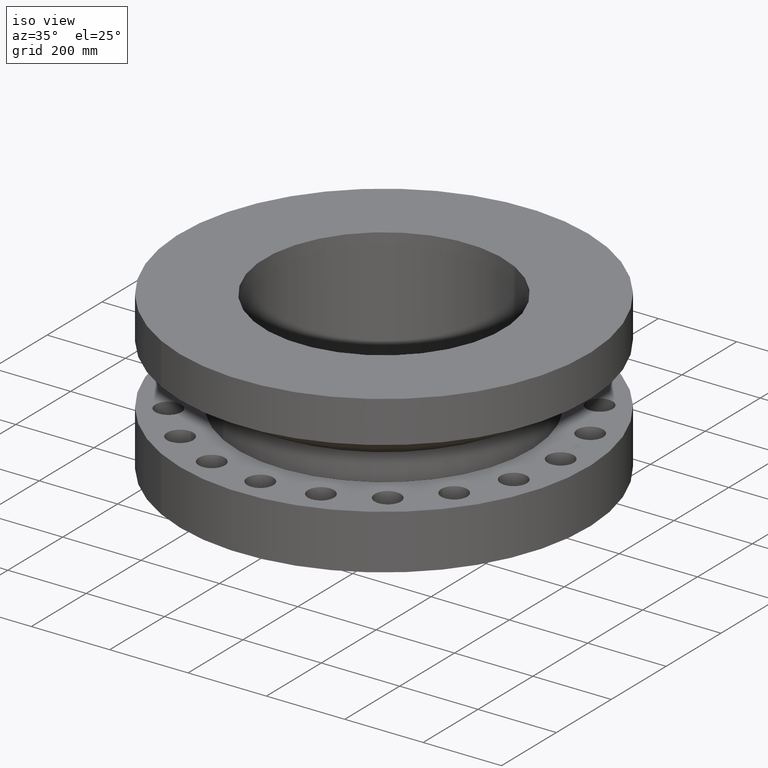
[diagram: clean part render]
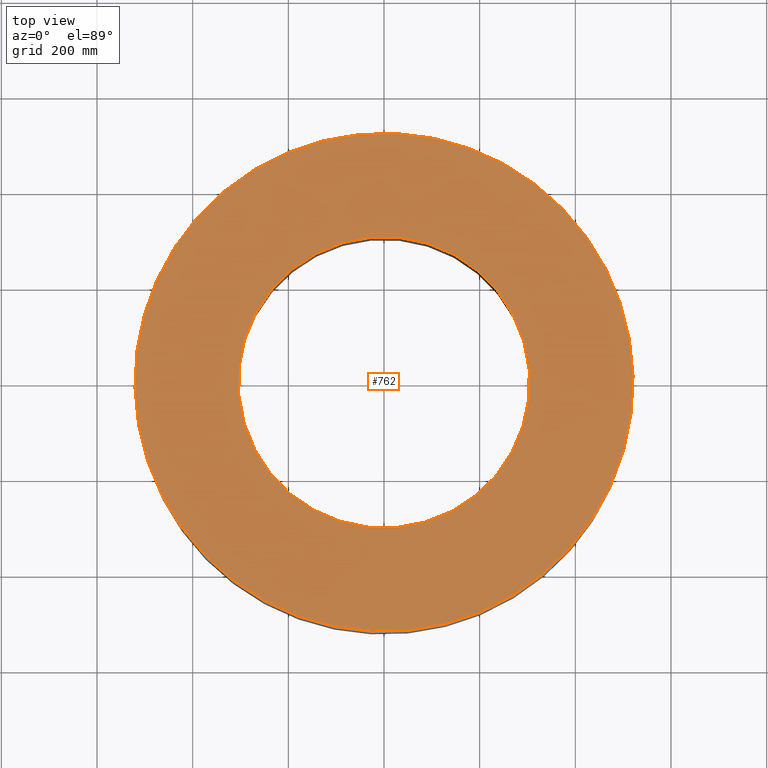
[diagram: tour spotlight — one face highlighted and labeled with its STEP entity id]
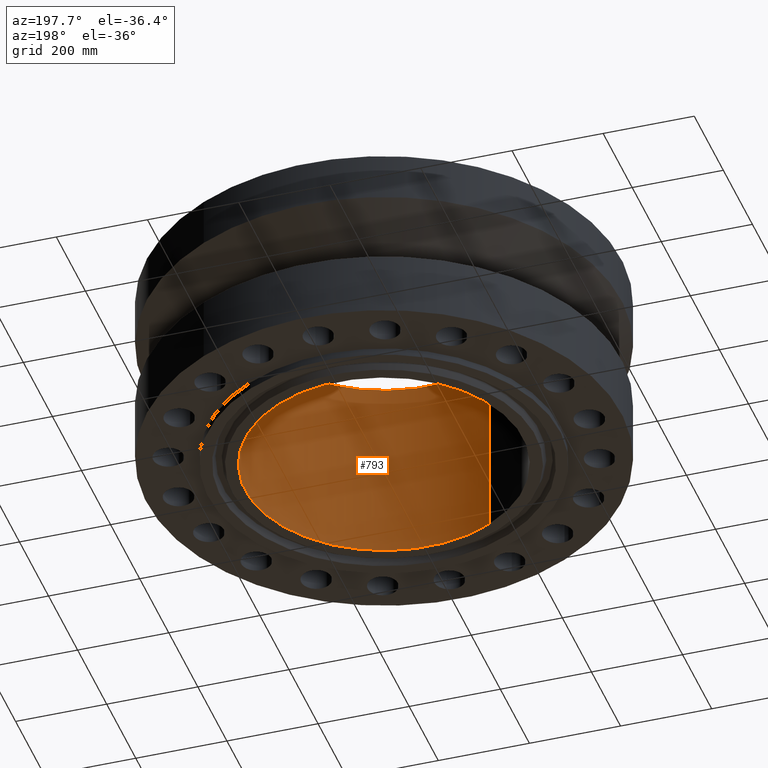
[diagram: tour spotlight — one face highlighted and labeled with its STEP entity id]
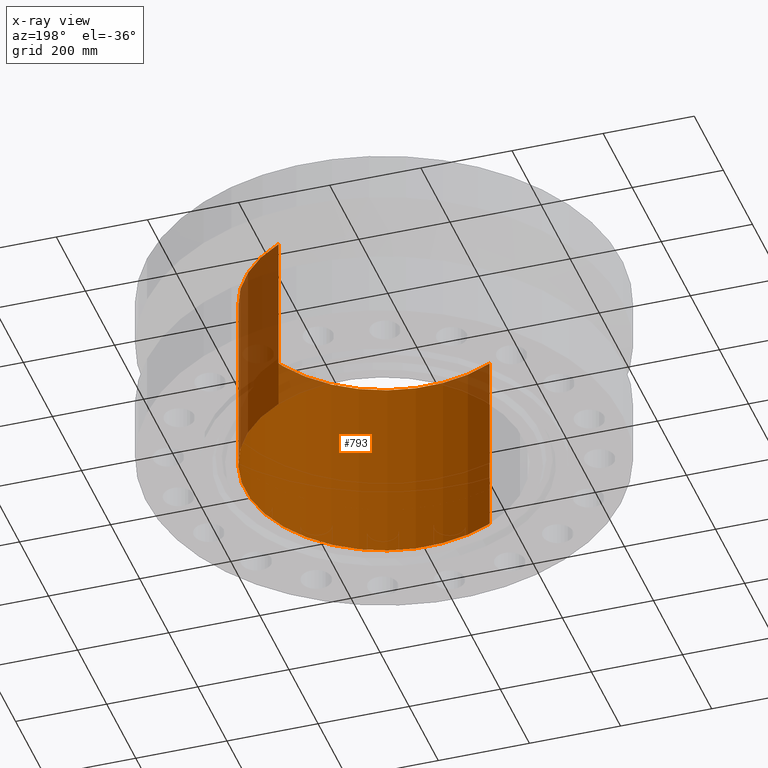
[diagram: x-ray of the same camera — body ghosted, this tour face saturated]
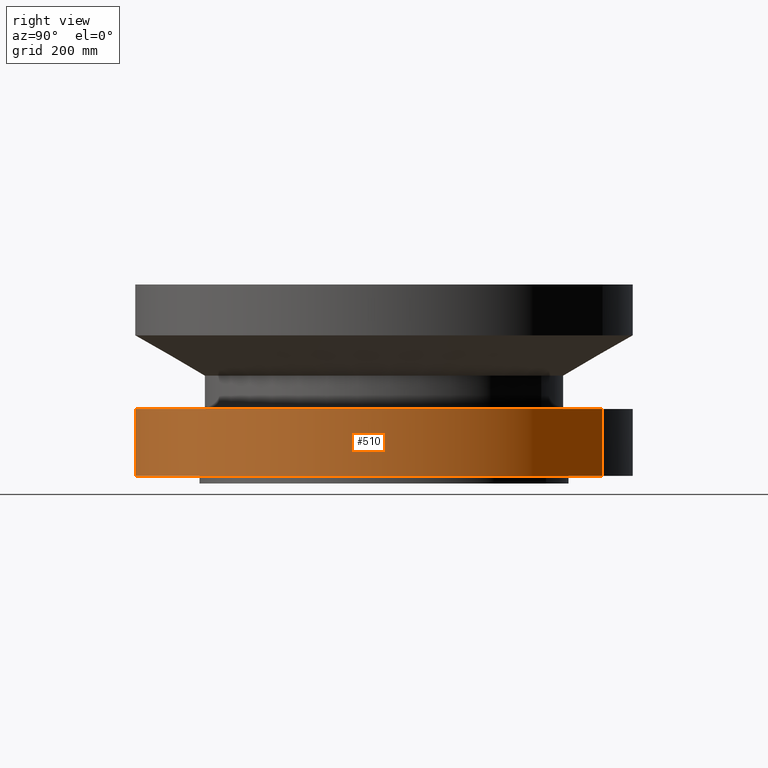
[diagram: tour spotlight — one face highlighted and labeled with its STEP entity id]
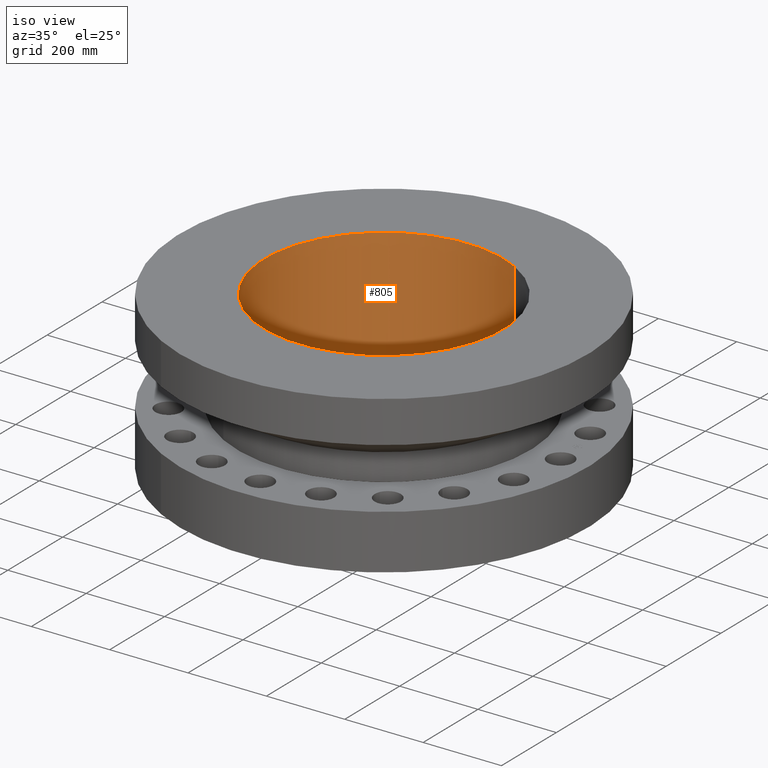
[diagram: tour spotlight — one face highlighted and labeled with its STEP entity id]
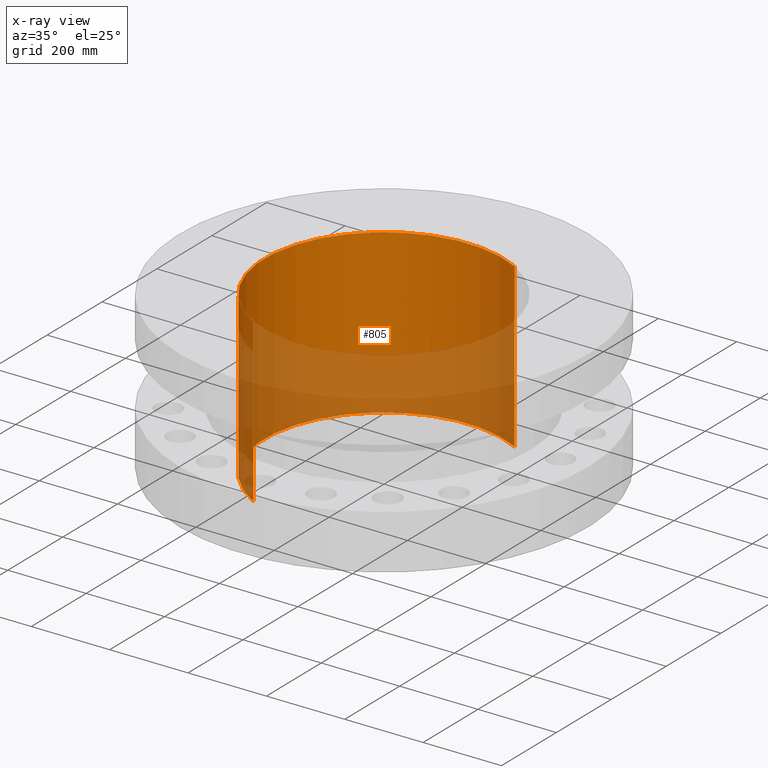
[diagram: x-ray of the same camera — body ghosted, this tour face saturated]
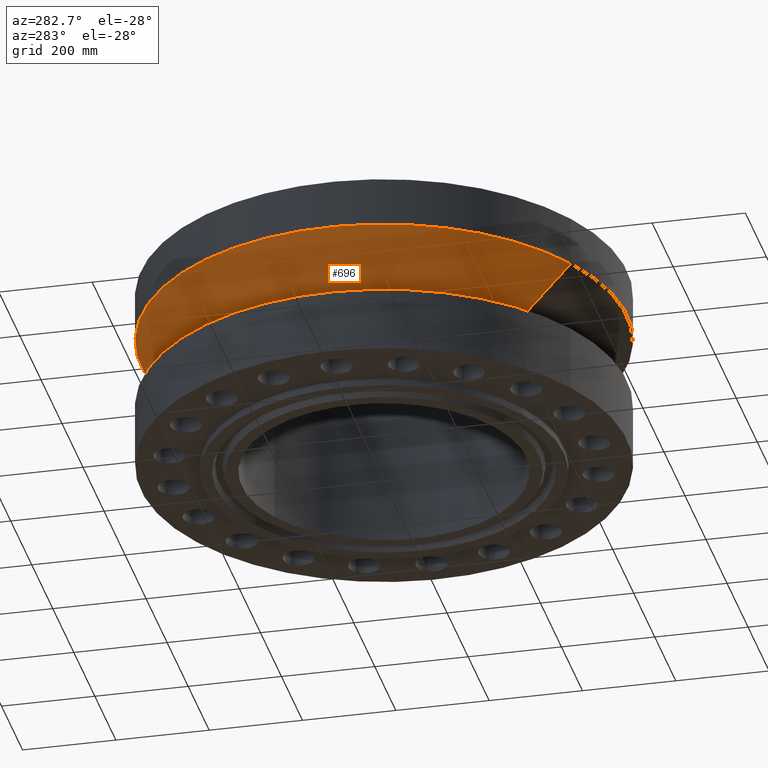
[diagram: tour spotlight — one face highlighted and labeled with its STEP entity id]
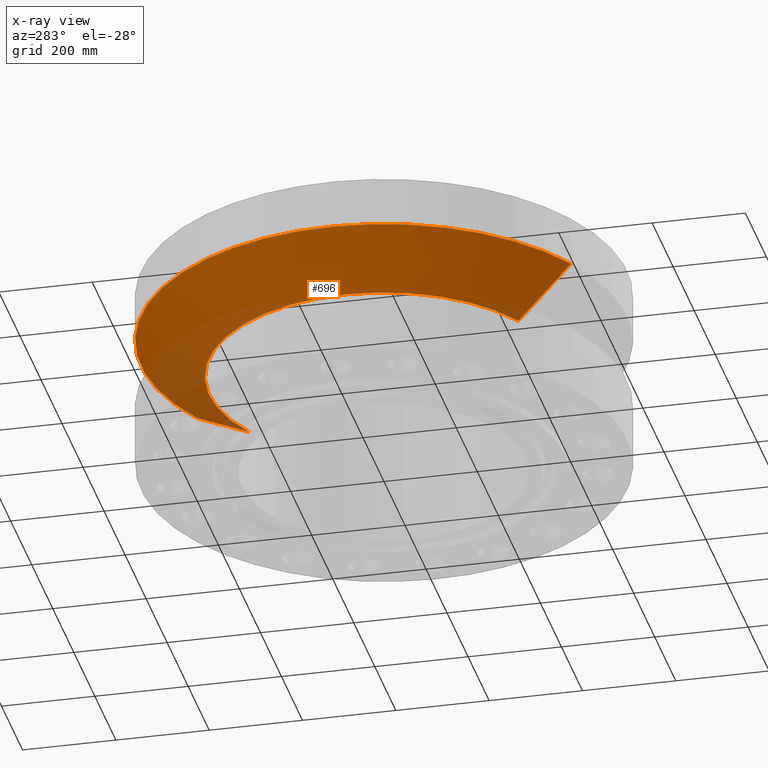
[diagram: x-ray of the same camera — body ghosted, this tour face saturated]
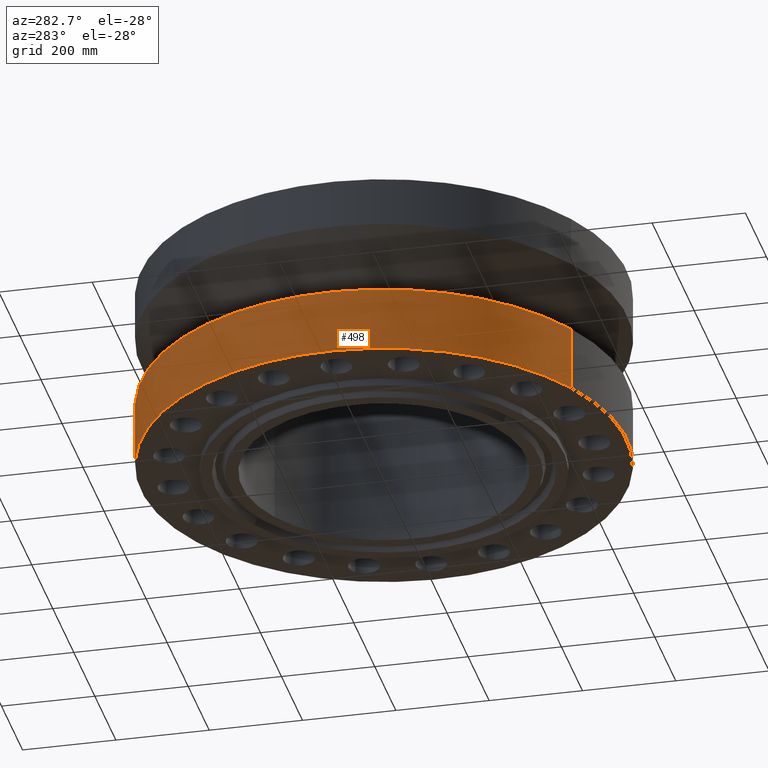
[diagram: tour spotlight — one face highlighted and labeled with its STEP entity id]
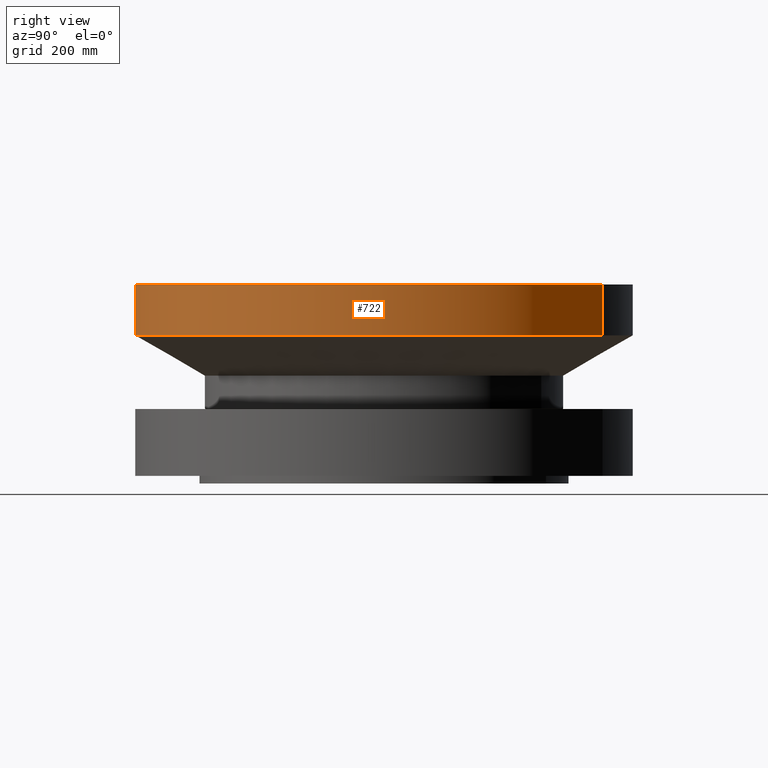
[diagram: tour spotlight — one face highlighted and labeled with its STEP entity id]
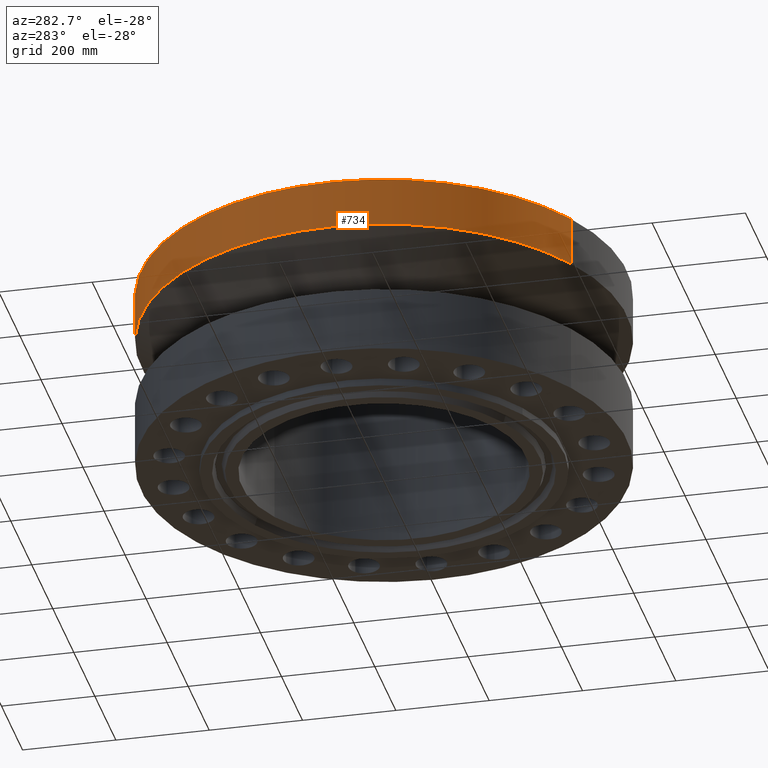
[diagram: tour spotlight — one face highlighted and labeled with its STEP entity id]
A machine part: a face-by-face anatomy tour. The part has 455 B-rep faces; the first image is the clean iso view, then the 8 largest visible faces are spotlighted one at a time (largest first), each with its STEP entity span.

Face 1 — top view, entity #762. In plain terms, the highlighted planar face has unit normal (0, 0, -1).
Definition (entity closure, byte-faithful):
#706=AXIS2_PLACEMENT_3D('Circle Axis2P3D',#704,#705,$) ;
#725=AXIS2_PLACEMENT_3D('Circle Axis2P3D',#723,#724,$) ;
#738=AXIS2_PLACEMENT_3D('Plane Axis2P3D',#735,#736,#737) ;
#746=AXIS2_PLACEMENT_3D('Circle Axis2P3D',#744,#745,$) ;
#755=AXIS2_PLACEMENT_3D('Circle Axis2P3D',#753,#754,$) ;
#701=CARTESIAN_POINT('Vertex',(9.82822354143,17.9904425188,15.7500000001)) ;
#704=CARTESIAN_POINT('Axis2P3D Location',(0.,0.,15.7500000001)) ;
#708=CARTESIAN_POINT('Vertex',(-9.82822354143,-17.9904425188,15.7500000001)) ;
#723=CARTESIAN_POINT('Axis2P3D Location',(0.,0.,15.7500000001)) ;
#735=CARTESIAN_POINT('Axis2P3D Location',(0.,20.5000000001,15.7500000001)) ;
#744=CARTESIAN_POINT('Axis2P3D Location',(0.,0.,15.7500000001)) ;
#748=CARTESIAN_POINT('Vertex',(-5.75310646327,-10.5309907427,15.7500000001)) ;
#750=CARTESIAN_POINT('Vertex',(5.75310646327,10.5309907427,15.7500000001)) ;
#753=CARTESIAN_POINT('Axis2P3D Location',(0.,0.,15.7500000001)) ;
#705=DIRECTION('Axis2P3D Direction',(0.,0.,-0.0393700787402)) ;
#724=DIRECTION('Axis2P3D Direction',(0.,0.,-0.0393700787402)) ;
#736=DIRECTION('Axis2P3D Direction',(0.,0.,-0.0393700787402)) ;
#737=DIRECTION('Axis2P3D XDirection',(0.0393700787402,0.,0.)) ;
#745=DIRECTION('Axis2P3D Direction',(0.,0.,-0.0393700787402)) ;
#754=DIRECTION('Axis2P3D Direction',(0.,0.,-0.0393700787402)) ;
#741=ORIENTED_EDGE('',*,*,#710,.F.) ;
#742=ORIENTED_EDGE('',*,*,#727,.F.) ;
#759=ORIENTED_EDGE('',*,*,#752,.T.) ;
#760=ORIENTED_EDGE('',*,*,#757,.T.) ;
#761=FACE_BOUND('',#758,.T.) ;
#762=ADVANCED_FACE('PartBody',(#743,#761),#739,.F.) ;
#707=CIRCLE('generated circle',#706,20.5000000001) ;
#726=CIRCLE('generated circle',#725,20.5000000001) ;
#747=CIRCLE('generated circle',#746,12.) ;
#756=CIRCLE('generated circle',#755,12.) ;
#710=EDGE_CURVE('',#702,#709,#707,.T.) ;
#727=EDGE_CURVE('',#709,#702,#726,.T.) ;
#752=EDGE_CURVE('',#749,#751,#747,.T.) ;
#757=EDGE_CURVE('',#751,#749,#756,.T.) ;
#740=EDGE_LOOP('',(#741,#742)) ;
#758=EDGE_LOOP('',(#759,#760)) ;
#743=FACE_OUTER_BOUND('',#740,.T.) ;
#739=PLANE('',#738) ;
#702=VERTEX_POINT('',#701) ;
#709=VERTEX_POINT('',#708) ;
#749=VERTEX_POINT('',#748) ;
#751=VERTEX_POINT('',#750) ;

Face 2 — auxiliary view, entity #793. An x-ray twin of the same camera follows (body ghosted, this face saturated) — the face is partly hidden behind the body. In plain terms, the highlighted cylindrical surface (partial cylindrical patch) has radius 304.8 mm, axis along (0, 0, -1).
Definition (entity closure, byte-faithful):
#755=AXIS2_PLACEMENT_3D('Circle Axis2P3D',#753,#754,$) ;
#766=AXIS2_PLACEMENT_3D('Cylinder Axis2P3D',#763,#764,#765) ;
#777=AXIS2_PLACEMENT_3D('Circle Axis2P3D',#775,#776,$) ;
#748=CARTESIAN_POINT('Vertex',(-5.75310646327,-10.5309907427,15.7500000001)) ;
#750=CARTESIAN_POINT('Vertex',(5.75310646327,10.5309907427,15.7500000001)) ;
#753=CARTESIAN_POINT('Axis2P3D Location',(0.,0.,15.7500000001)) ;
#763=CARTESIAN_POINT('Axis2P3D Location',(0.,0.,7.56250000003)) ;
#768=CARTESIAN_POINT('Line Origine',(5.75310646327,10.5309907427,7.56250000003)) ;
#772=CARTESIAN_POINT('Vertex',(5.75310646327,10.5309907427,-0.625000000002)) ;
#775=CARTESIAN_POINT('Axis2P3D Location',(0.,0.,-0.625000000002)) ;
#779=CARTESIAN_POINT('Vertex',(-5.75310646327,-10.5309907427,-0.625000000002)) ;
#782=CARTESIAN_POINT('Line Origine',(-5.75310646327,-10.5309907427,7.56250000003)) ;
#754=DIRECTION('Axis2P3D Direction',(0.,0.,-0.0393700787402)) ;
#764=DIRECTION('Axis2P3D Direction',(0.,0.,-0.0393700787402)) ;
#765=DIRECTION('Axis2P3D XDirection',(-0.0188750212049,-0.0345504945626,0.)) ;
#769=DIRECTION('Vector Direction',(0.,0.,-0.0393700787402)) ;
#776=DIRECTION('Axis2P3D Direction',(0.,0.,-0.0393700787402)) ;
#783=DIRECTION('Vector Direction',(0.,0.,-0.0393700787402)) ;
#770=VECTOR('Line Direction',#769,0.0393700787402) ;
#784=VECTOR('Line Direction',#783,0.0393700787402) ;
#788=ORIENTED_EDGE('',*,*,#757,.F.) ;
#789=ORIENTED_EDGE('',*,*,#774,.T.) ;
#790=ORIENTED_EDGE('',*,*,#781,.T.) ;
#791=ORIENTED_EDGE('',*,*,#786,.F.) ;
#793=ADVANCED_FACE('PartBody',(#792),#767,.F.) ;
#756=CIRCLE('generated circle',#755,12.) ;
#778=CIRCLE('generated circle',#777,12.) ;
#767=CYLINDRICAL_SURFACE('generated cylinder',#766,12.) ;
#757=EDGE_CURVE('',#751,#749,#756,.T.) ;
#774=EDGE_CURVE('',#751,#773,#771,.T.) ;
#781=EDGE_CURVE('',#773,#780,#778,.T.) ;
#786=EDGE_CURVE('',#749,#780,#785,.T.) ;
#787=EDGE_LOOP('',(#788,#789,#790,#791)) ;
#792=FACE_OUTER_BOUND('',#787,.T.) ;
#771=LINE('Line',#768,#770) ;
#785=LINE('Line',#782,#784) ;
#749=VERTEX_POINT('',#748) ;
#751=VERTEX_POINT('',#750) ;
#773=VERTEX_POINT('',#772) ;
#780=VERTEX_POINT('',#779) ;

Face 3 — right view, entity #510. In plain terms, the highlighted cylindrical surface (partial cylindrical patch) has radius 520.7 mm, axis along (0, 0, -1).
Definition (entity closure, byte-faithful):
#91=AXIS2_PLACEMENT_3D('Circle Axis2P3D',#89,#90,$) ;
#471=AXIS2_PLACEMENT_3D('Cylinder Axis2P3D',#468,#469,#470) ;
#501=AXIS2_PLACEMENT_3D('Circle Axis2P3D',#499,#500,$) ;
#84=CARTESIAN_POINT('Vertex',(-9.82822354143,-17.9904425188,2.23792987641E-015)) ;
#86=CARTESIAN_POINT('Vertex',(9.82822354143,17.9904425188,2.23792987641E-015)) ;
#89=CARTESIAN_POINT('Axis2P3D Location',(0.,0.,0.)) ;
#468=CARTESIAN_POINT('Axis2P3D Location',(0.,0.,7.56250000003)) ;
#473=CARTESIAN_POINT('Line Origine',(-9.82822354143,-17.9904425188,13.659882024)) ;
#477=CARTESIAN_POINT('Vertex',(-9.82822354143,-17.9904425188,5.50000000002)) ;
#484=CARTESIAN_POINT('Vertex',(9.82822354143,17.9904425188,5.50000000002)) ;
#487=CARTESIAN_POINT('Line Origine',(9.82822354143,17.9904425188,13.659882024)) ;
#499=CARTESIAN_POINT('Axis2P3D Location',(0.,0.,5.50000000002)) ;
#90=DIRECTION('Axis2P3D Direction',(0.,0.,-0.0393700787402)) ;
#469=DIRECTION('Axis2P3D Direction',(0.,0.,-0.0393700787402)) ;
#470=DIRECTION('Axis2P3D XDirection',(-0.0188750212049,-0.0345504945626,0.)) ;
#474=DIRECTION('Vector Direction',(0.,0.,-0.0393700787402)) ;
#488=DIRECTION('Vector Direction',(0.,0.,-0.0393700787402)) ;
#500=DIRECTION('Axis2P3D Direction',(0.,0.,-0.0393700787402)) ;
#475=VECTOR('Line Direction',#474,0.0393700787402) ;
#489=VECTOR('Line Direction',#488,0.0393700787402) ;
#505=ORIENTED_EDGE('',*,*,#93,.F.) ;
#506=ORIENTED_EDGE('',*,*,#491,.T.) ;
#507=ORIENTED_EDGE('',*,*,#503,.T.) ;
#508=ORIENTED_EDGE('',*,*,#479,.F.) ;
#510=ADVANCED_FACE('PartBody',(#509),#472,.T.) ;
#92=CIRCLE('generated circle',#91,20.5000000001) ;
#502=CIRCLE('generated circle',#501,20.5000000001) ;
#472=CYLINDRICAL_SURFACE('generated cylinder',#471,20.5000000001) ;
#93=EDGE_CURVE('',#87,#85,#92,.T.) ;
#479=EDGE_CURVE('',#85,#478,#476,.F.) ;
#491=EDGE_CURVE('',#87,#485,#490,.F.) ;
#503=EDGE_CURVE('',#485,#478,#502,.T.) ;
#504=EDGE_LOOP('',(#505,#506,#507,#508)) ;
#509=FACE_OUTER_BOUND('',#504,.T.) ;
#476=LINE('Line',#473,#475) ;
#490=LINE('Line',#487,#489) ;
#85=VERTEX_POINT('',#84) ;
#87=VERTEX_POINT('',#86) ;
#478=VERTEX_POINT('',#477) ;
#485=VERTEX_POINT('',#484) ;

Face 4 — iso view, entity #805. An x-ray twin of the same camera follows (body ghosted, this face saturated) — the face is partly hidden behind the body. In plain terms, the highlighted cylindrical surface (partial cylindrical patch) has radius 304.8 mm, axis along (0, 0, -1).
Definition (entity closure, byte-faithful):
#746=AXIS2_PLACEMENT_3D('Circle Axis2P3D',#744,#745,$) ;
#766=AXIS2_PLACEMENT_3D('Cylinder Axis2P3D',#763,#764,#765) ;
#796=AXIS2_PLACEMENT_3D('Circle Axis2P3D',#794,#795,$) ;
#744=CARTESIAN_POINT('Axis2P3D Location',(0.,0.,15.7500000001)) ;
#748=CARTESIAN_POINT('Vertex',(-5.75310646327,-10.5309907427,15.7500000001)) ;
#750=CARTESIAN_POINT('Vertex',(5.75310646327,10.5309907427,15.7500000001)) ;
#763=CARTESIAN_POINT('Axis2P3D Location',(0.,0.,7.56250000003)) ;
#768=CARTESIAN_POINT('Line Origine',(5.75310646327,10.5309907427,7.56250000003)) ;
#772=CARTESIAN_POINT('Vertex',(5.75310646327,10.5309907427,-0.625000000002)) ;
#779=CARTESIAN_POINT('Vertex',(-5.75310646327,-10.5309907427,-0.625000000002)) ;
#782=CARTESIAN_POINT('Line Origine',(-5.75310646327,-10.5309907427,7.56250000003)) ;
#794=CARTESIAN_POINT('Axis2P3D Location',(0.,0.,-0.625000000002)) ;
#745=DIRECTION('Axis2P3D Direction',(0.,0.,-0.0393700787402)) ;
#764=DIRECTION('Axis2P3D Direction',(0.,0.,-0.0393700787402)) ;
#765=DIRECTION('Axis2P3D XDirection',(-0.0188750212049,-0.0345504945626,0.)) ;
#769=DIRECTION('Vector Direction',(0.,0.,-0.0393700787402)) ;
#783=DIRECTION('Vector Direction',(0.,0.,-0.0393700787402)) ;
#795=DIRECTION('Axis2P3D Direction',(0.,0.,-0.0393700787402)) ;
#770=VECTOR('Line Direction',#769,0.0393700787402) ;
#784=VECTOR('Line Direction',#783,0.0393700787402) ;
#800=ORIENTED_EDGE('',*,*,#752,.F.) ;
#801=ORIENTED_EDGE('',*,*,#786,.T.) ;
#802=ORIENTED_EDGE('',*,*,#798,.T.) ;
#803=ORIENTED_EDGE('',*,*,#774,.F.) ;
#805=ADVANCED_FACE('PartBody',(#804),#767,.F.) ;
#747=CIRCLE('generated circle',#746,12.) ;
#797=CIRCLE('generated circle',#796,12.) ;
#767=CYLINDRICAL_SURFACE('generated cylinder',#766,12.) ;
#752=EDGE_CURVE('',#749,#751,#747,.T.) ;
#774=EDGE_CURVE('',#751,#773,#771,.T.) ;
#786=EDGE_CURVE('',#749,#780,#785,.T.) ;
#798=EDGE_CURVE('',#780,#773,#797,.T.) ;
#799=EDGE_LOOP('',(#800,#801,#802,#803)) ;
#804=FACE_OUTER_BOUND('',#799,.T.) ;
#771=LINE('Line',#768,#770) ;
#785=LINE('Line',#782,#784) ;
#749=VERTEX_POINT('',#748) ;
#751=VERTEX_POINT('',#750) ;
#773=VERTEX_POINT('',#772) ;
#780=VERTEX_POINT('',#779) ;

Face 5 — auxiliary view, entity #696. An x-ray twin of the same camera follows (body ghosted, this face saturated) — the face is partly hidden behind the body. In plain terms, the highlighted conical surface has half-angle 60 deg.
Definition (entity closure, byte-faithful):
#644=AXIS2_PLACEMENT_3D('Circle Axis2P3D',#642,#643,$) ;
#657=AXIS2_PLACEMENT_3D('Cone Axis2P3D',#654,#655,#656) ;
#687=AXIS2_PLACEMENT_3D('Circle Axis2P3D',#685,#686,$) ;
#620=CARTESIAN_POINT('Vertex',(7.07152669444,12.9443427879,8.25000000003)) ;
#627=CARTESIAN_POINT('Vertex',(-7.07152669444,-12.9443427879,8.25000000003)) ;
#642=CARTESIAN_POINT('Axis2P3D Location',(0.,0.,8.25000000003)) ;
#654=CARTESIAN_POINT('Axis2P3D Location',(0.,0.,8.25000000003)) ;
#659=CARTESIAN_POINT('Line Origine',(8.44987511793,15.4673926534,9.90988202396)) ;
#663=CARTESIAN_POINT('Vertex',(9.82822354143,17.9904425188,11.5697640479)) ;
#670=CARTESIAN_POINT('Vertex',(-9.82822354143,-17.9904425188,11.5697640479)) ;
#673=CARTESIAN_POINT('Line Origine',(-8.44987511793,-15.4673926534,9.90988202396)) ;
#685=CARTESIAN_POINT('Axis2P3D Location',(0.,0.,11.5697640479)) ;
#643=DIRECTION('Axis2P3D Direction',(0.,0.,-0.0393700787402)) ;
#655=DIRECTION('Axis2P3D Direction',(-0.,-0.,0.0393700787402)) ;
#656=DIRECTION('Axis2P3D XDirection',(0.0188750212049,0.0345504945626,0.)) ;
#660=DIRECTION('Vector Direction',(0.0163462478604,0.0299216060045,0.0196850393701)) ;
#674=DIRECTION('Vector Direction',(-0.0163462478604,-0.0299216060045,0.0196850393701)) ;
#686=DIRECTION('Axis2P3D Direction',(-0.,0.,0.0393700787402)) ;
#661=VECTOR('Line Direction',#660,0.0393700787402) ;
#675=VECTOR('Line Direction',#674,0.0393700787402) ;
#691=ORIENTED_EDGE('',*,*,#646,.F.) ;
#692=ORIENTED_EDGE('',*,*,#677,.T.) ;
#693=ORIENTED_EDGE('',*,*,#689,.T.) ;
#694=ORIENTED_EDGE('',*,*,#665,.F.) ;
#696=ADVANCED_FACE('PartBody',(#695),#658,.T.) ;
#645=CIRCLE('generated circle',#644,14.7500000001) ;
#688=CIRCLE('generated circle',#687,20.5000000001) ;
#658=CONICAL_SURFACE('Cone',#657,14.7500000001,1.0471975512) ;
#646=EDGE_CURVE('',#628,#621,#645,.T.) ;
#665=EDGE_CURVE('',#621,#664,#662,.T.) ;
#677=EDGE_CURVE('',#628,#671,#676,.T.) ;
#689=EDGE_CURVE('',#671,#664,#688,.F.) ;
#690=EDGE_LOOP('',(#691,#692,#693,#694)) ;
#695=FACE_OUTER_BOUND('',#690,.T.) ;
#662=LINE('Line',#659,#661) ;
#676=LINE('Line',#673,#675) ;
#621=VERTEX_POINT('',#620) ;
#628=VERTEX_POINT('',#627) ;
#664=VERTEX_POINT('',#663) ;
#671=VERTEX_POINT('',#670) ;

Face 6 — auxiliary view, entity #498. In plain terms, the highlighted cylindrical surface (partial cylindrical patch) has radius 520.7 mm, axis along (0, 0, -1).
Definition (entity closure, byte-faithful):
#82=AXIS2_PLACEMENT_3D('Circle Axis2P3D',#80,#81,$) ;
#471=AXIS2_PLACEMENT_3D('Cylinder Axis2P3D',#468,#469,#470) ;
#482=AXIS2_PLACEMENT_3D('Circle Axis2P3D',#480,#481,$) ;
#80=CARTESIAN_POINT('Axis2P3D Location',(0.,0.,0.)) ;
#84=CARTESIAN_POINT('Vertex',(-9.82822354143,-17.9904425188,2.23792987641E-015)) ;
#86=CARTESIAN_POINT('Vertex',(9.82822354143,17.9904425188,2.23792987641E-015)) ;
#468=CARTESIAN_POINT('Axis2P3D Location',(0.,0.,7.56250000003)) ;
#473=CARTESIAN_POINT('Line Origine',(-9.82822354143,-17.9904425188,13.659882024)) ;
#477=CARTESIAN_POINT('Vertex',(-9.82822354143,-17.9904425188,5.50000000002)) ;
#480=CARTESIAN_POINT('Axis2P3D Location',(0.,0.,5.50000000002)) ;
#484=CARTESIAN_POINT('Vertex',(9.82822354143,17.9904425188,5.50000000002)) ;
#487=CARTESIAN_POINT('Line Origine',(9.82822354143,17.9904425188,13.659882024)) ;
#81=DIRECTION('Axis2P3D Direction',(0.,0.,-0.0393700787402)) ;
#469=DIRECTION('Axis2P3D Direction',(0.,0.,-0.0393700787402)) ;
#470=DIRECTION('Axis2P3D XDirection',(-0.0188750212049,-0.0345504945626,0.)) ;
#474=DIRECTION('Vector Direction',(0.,0.,-0.0393700787402)) ;
#481=DIRECTION('Axis2P3D Direction',(0.,0.,-0.0393700787402)) ;
#488=DIRECTION('Vector Direction',(0.,0.,-0.0393700787402)) ;
#475=VECTOR('Line Direction',#474,0.0393700787402) ;
#489=VECTOR('Line Direction',#488,0.0393700787402) ;
#493=ORIENTED_EDGE('',*,*,#88,.F.) ;
#494=ORIENTED_EDGE('',*,*,#479,.T.) ;
#495=ORIENTED_EDGE('',*,*,#486,.T.) ;
#496=ORIENTED_EDGE('',*,*,#491,.F.) ;
#498=ADVANCED_FACE('PartBody',(#497),#472,.T.) ;
#83=CIRCLE('generated circle',#82,20.5000000001) ;
#483=CIRCLE('generated circle',#482,20.5000000001) ;
#472=CYLINDRICAL_SURFACE('generated cylinder',#471,20.5000000001) ;
#88=EDGE_CURVE('',#85,#87,#83,.T.) ;
#479=EDGE_CURVE('',#85,#478,#476,.F.) ;
#486=EDGE_CURVE('',#478,#485,#483,.T.) ;
#491=EDGE_CURVE('',#87,#485,#490,.F.) ;
#492=EDGE_LOOP('',(#493,#494,#495,#496)) ;
#497=FACE_OUTER_BOUND('',#492,.T.) ;
#476=LINE('Line',#473,#475) ;
#490=LINE('Line',#487,#489) ;
#85=VERTEX_POINT('',#84) ;
#87=VERTEX_POINT('',#86) ;
#478=VERTEX_POINT('',#477) ;
#485=VERTEX_POINT('',#484) ;

Face 7 — right view, entity #722. In plain terms, the highlighted cylindrical surface (partial cylindrical patch) has radius 520.7 mm, axis along (0, 0, -1).
Definition (entity closure, byte-faithful):
#471=AXIS2_PLACEMENT_3D('Cylinder Axis2P3D',#468,#469,#470) ;
#668=AXIS2_PLACEMENT_3D('Circle Axis2P3D',#666,#667,$) ;
#706=AXIS2_PLACEMENT_3D('Circle Axis2P3D',#704,#705,$) ;
#468=CARTESIAN_POINT('Axis2P3D Location',(0.,0.,7.56250000003)) ;
#663=CARTESIAN_POINT('Vertex',(9.82822354143,17.9904425188,11.5697640479)) ;
#666=CARTESIAN_POINT('Axis2P3D Location',(0.,0.,11.5697640479)) ;
#670=CARTESIAN_POINT('Vertex',(-9.82822354143,-17.9904425188,11.5697640479)) ;
#697=CARTESIAN_POINT('Line Origine',(9.82822354143,17.9904425188,13.659882024)) ;
#701=CARTESIAN_POINT('Vertex',(9.82822354143,17.9904425188,15.7500000001)) ;
#704=CARTESIAN_POINT('Axis2P3D Location',(0.,0.,15.7500000001)) ;
#708=CARTESIAN_POINT('Vertex',(-9.82822354143,-17.9904425188,15.7500000001)) ;
#711=CARTESIAN_POINT('Line Origine',(-9.82822354143,-17.9904425188,13.659882024)) ;
#469=DIRECTION('Axis2P3D Direction',(0.,0.,-0.0393700787402)) ;
#470=DIRECTION('Axis2P3D XDirection',(-0.0188750212049,-0.0345504945626,0.)) ;
#667=DIRECTION('Axis2P3D Direction',(-0.,0.,0.0393700787402)) ;
#698=DIRECTION('Vector Direction',(0.,0.,-0.0393700787402)) ;
#705=DIRECTION('Axis2P3D Direction',(0.,0.,-0.0393700787402)) ;
#712=DIRECTION('Vector Direction',(0.,0.,-0.0393700787402)) ;
#699=VECTOR('Line Direction',#698,0.0393700787402) ;
#713=VECTOR('Line Direction',#712,0.0393700787402) ;
#717=ORIENTED_EDGE('',*,*,#672,.F.) ;
#718=ORIENTED_EDGE('',*,*,#703,.T.) ;
#719=ORIENTED_EDGE('',*,*,#710,.T.) ;
#720=ORIENTED_EDGE('',*,*,#715,.F.) ;
#722=ADVANCED_FACE('PartBody',(#721),#472,.T.) ;
#669=CIRCLE('generated circle',#668,20.5000000001) ;
#707=CIRCLE('generated circle',#706,20.5000000001) ;
#472=CYLINDRICAL_SURFACE('generated cylinder',#471,20.5000000001) ;
#672=EDGE_CURVE('',#664,#671,#669,.F.) ;
#703=EDGE_CURVE('',#664,#702,#700,.F.) ;
#710=EDGE_CURVE('',#702,#709,#707,.T.) ;
#715=EDGE_CURVE('',#671,#709,#714,.F.) ;
#716=EDGE_LOOP('',(#717,#718,#719,#720)) ;
#721=FACE_OUTER_BOUND('',#716,.T.) ;
#700=LINE('Line',#697,#699) ;
#714=LINE('Line',#711,#713) ;
#664=VERTEX_POINT('',#663) ;
#671=VERTEX_POINT('',#670) ;
#702=VERTEX_POINT('',#701) ;
#709=VERTEX_POINT('',#708) ;

Face 8 — auxiliary view, entity #734. In plain terms, the highlighted cylindrical surface (partial cylindrical patch) has radius 520.7 mm, axis along (0, 0, -1).
Definition (entity closure, byte-faithful):
#471=AXIS2_PLACEMENT_3D('Cylinder Axis2P3D',#468,#469,#470) ;
#687=AXIS2_PLACEMENT_3D('Circle Axis2P3D',#685,#686,$) ;
#725=AXIS2_PLACEMENT_3D('Circle Axis2P3D',#723,#724,$) ;
#468=CARTESIAN_POINT('Axis2P3D Location',(0.,0.,7.56250000003)) ;
#663=CARTESIAN_POINT('Vertex',(9.82822354143,17.9904425188,11.5697640479)) ;
#670=CARTESIAN_POINT('Vertex',(-9.82822354143,-17.9904425188,11.5697640479)) ;
#685=CARTESIAN_POINT('Axis2P3D Location',(0.,0.,11.5697640479)) ;
#697=CARTESIAN_POINT('Line Origine',(9.82822354143,17.9904425188,13.659882024)) ;
#701=CARTESIAN_POINT('Vertex',(9.82822354143,17.9904425188,15.7500000001)) ;
#708=CARTESIAN_POINT('Vertex',(-9.82822354143,-17.9904425188,15.7500000001)) ;
#711=CARTESIAN_POINT('Line Origine',(-9.82822354143,-17.9904425188,13.659882024)) ;
#723=CARTESIAN_POINT('Axis2P3D Location',(0.,0.,15.7500000001)) ;
#469=DIRECTION('Axis2P3D Direction',(0.,0.,-0.0393700787402)) ;
#470=DIRECTION('Axis2P3D XDirection',(-0.0188750212049,-0.0345504945626,0.)) ;
#686=DIRECTION('Axis2P3D Direction',(-0.,0.,0.0393700787402)) ;
#698=DIRECTION('Vector Direction',(0.,0.,-0.0393700787402)) ;
#712=DIRECTION('Vector Direction',(0.,0.,-0.0393700787402)) ;
#724=DIRECTION('Axis2P3D Direction',(0.,0.,-0.0393700787402)) ;
#699=VECTOR('Line Direction',#698,0.0393700787402) ;
#713=VECTOR('Line Direction',#712,0.0393700787402) ;
#729=ORIENTED_EDGE('',*,*,#689,.F.) ;
#730=ORIENTED_EDGE('',*,*,#715,.T.) ;
#731=ORIENTED_EDGE('',*,*,#727,.T.) ;
#732=ORIENTED_EDGE('',*,*,#703,.F.) ;
#734=ADVANCED_FACE('PartBody',(#733),#472,.T.) ;
#688=CIRCLE('generated circle',#687,20.5000000001) ;
#726=CIRCLE('generated circle',#725,20.5000000001) ;
#472=CYLINDRICAL_SURFACE('generated cylinder',#471,20.5000000001) ;
#689=EDGE_CURVE('',#671,#664,#688,.F.) ;
#703=EDGE_CURVE('',#664,#702,#700,.F.) ;
#715=EDGE_CURVE('',#671,#709,#714,.F.) ;
#727=EDGE_CURVE('',#709,#702,#726,.T.) ;
#728=EDGE_LOOP('',(#729,#730,#731,#732)) ;
#733=FACE_OUTER_BOUND('',#728,.T.) ;
#700=LINE('Line',#697,#699) ;
#714=LINE('Line',#711,#713) ;
#664=VERTEX_POINT('',#663) ;
#671=VERTEX_POINT('',#670) ;
#702=VERTEX_POINT('',#701) ;
#709=VERTEX_POINT('',#708) ;